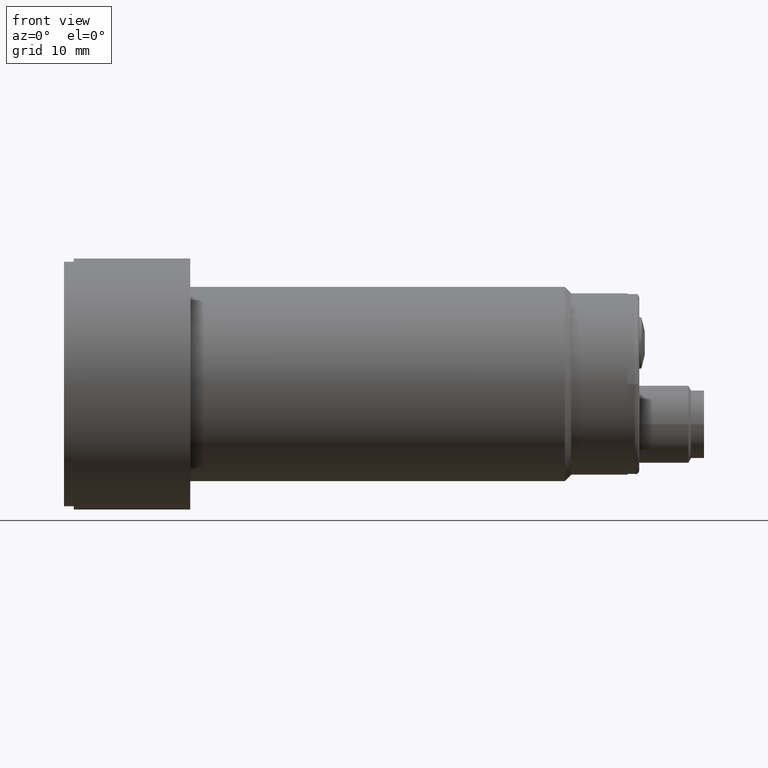
[diagram: clean part render]
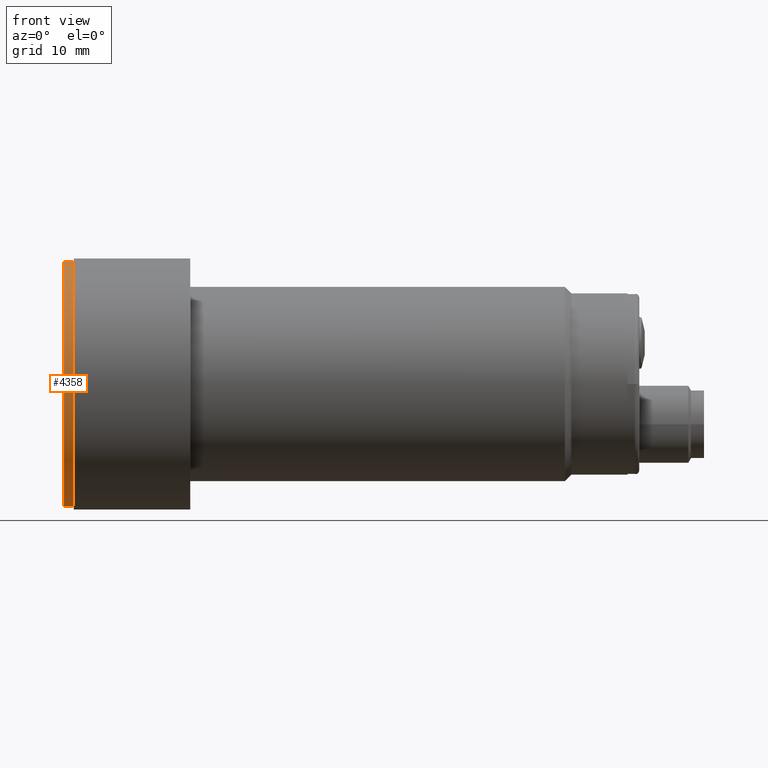
[diagram: same view with one face highlighted and labeled with its STEP entity id]
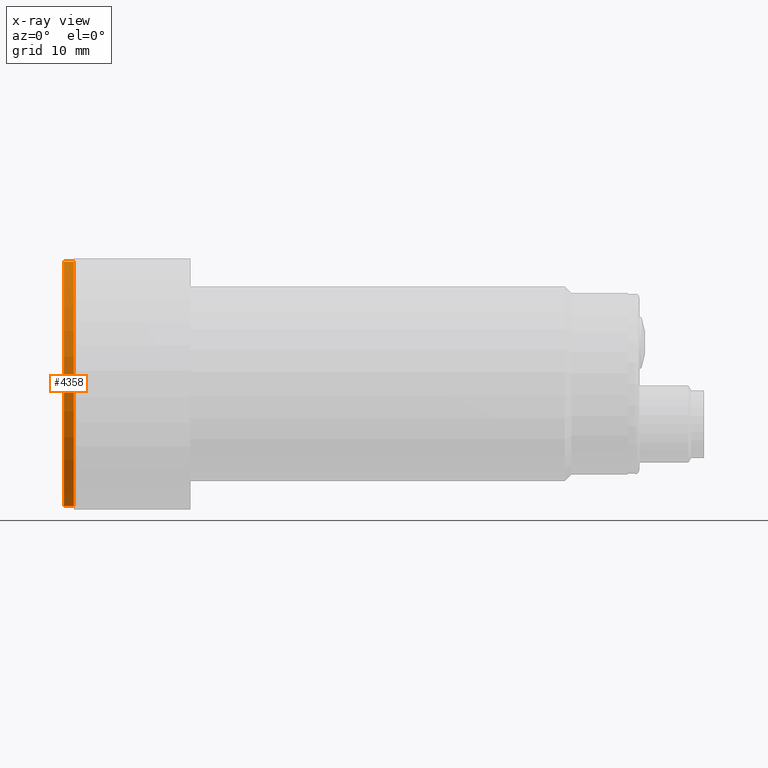
[diagram: x-ray of the same camera — body ghosted, the highlighted face saturated]
A machine part, front view. The second image highlights one B-rep face of the part: STEP entity #4358.
The next image is the same camera in x-ray: the body ghosted, the highlighted face saturated — about 0% of this face is hidden behind the body in this view.
In plain terms, the highlighted cylindrical surface (partial cylindrical patch) has radius 18.9 mm, axis along (1, -0, -0).
Its self-contained STEP definition (entity closure, byte-faithful):
#29 = DIRECTION ( 'NONE',  ( 1.000000000000000000, -0.0000000000000000000, -0.0000000000000000000 ) ) ;
#164 = VECTOR ( 'NONE', #4712, 39.37007874015748100 ) ;
#260 = ORIENTED_EDGE ( 'NONE', *, *, #4397, .T. ) ;
#585 = VERTEX_POINT ( 'NONE', #3147 ) ;
#645 = VECTOR ( 'NONE', #1870, 39.37007874015748100 ) ;
#742 = VERTEX_POINT ( 'NONE', #3089 ) ;
#867 = DIRECTION ( 'NONE',  ( 0.0000000000000000000, 0.0000000000000000000, -1.000000000000000000 ) ) ;
#969 = ORIENTED_EDGE ( 'NONE', *, *, #4742, .T. ) ;
#1000 = EDGE_CURVE ( 'NONE', #585, #742, #5057, .T. ) ;
#1052 = VERTEX_POINT ( 'NONE', #4121 ) ;
#1167 = LINE ( 'NONE', #3070, #645 ) ;
#1235 = EDGE_CURVE ( 'NONE', #1052, #742, #1167, .T. ) ;
#1326 = CIRCLE ( 'NONE', #1487, 0.7440944881889763900 ) ;
#1356 = EDGE_LOOP ( 'NONE', ( #1846, #260, #969, #3538 ) ) ;
#1487 = AXIS2_PLACEMENT_3D ( 'NONE', #4305, #3186, #867 ) ;
#1609 = DIRECTION ( 'NONE',  ( 0.0000000000000000000, 0.0000000000000000000, -1.000000000000000000 ) ) ;
#1630 = CARTESIAN_POINT ( 'NONE',  ( -0.05905511811023622700, -6.556435184794253000E-018, -0.7440944881889763900 ) ) ;
#1846 = ORIENTED_EDGE ( 'NONE', *, *, #1235, .F. ) ;
#1870 = DIRECTION ( 'NONE',  ( 1.000000000000000000, -0.0000000000000000000, -0.0000000000000000000 ) ) ;
#1908 = AXIS2_PLACEMENT_3D ( 'NONE', #4751, #29, #1609 ) ;
#2352 = CARTESIAN_POINT ( 'NONE',  ( 0.0000000000000000000, -6.556435184794253000E-018, -0.7440944881889763900 ) ) ;
#2542 = LINE ( 'NONE', #2352, #164 ) ;
#2899 = DIRECTION ( 'NONE',  ( 0.0000000000000000000, 0.0000000000000000000, -1.000000000000000000 ) ) ;
#3070 = CARTESIAN_POINT ( 'NONE',  ( 0.0000000000000000000, 8.456885813758755300E-017, 0.7440944881889763900 ) ) ;
#3089 = CARTESIAN_POINT ( 'NONE',  ( 0.0000000000000000000, 8.456885813758755300E-017, 0.7440944881889763900 ) ) ;
#3147 = CARTESIAN_POINT ( 'NONE',  ( 0.0000000000000000000, -6.556435184794253000E-018, -0.7440944881889763900 ) ) ;
#3186 = DIRECTION ( 'NONE',  ( 1.000000000000000000, -0.0000000000000000000, -0.0000000000000000000 ) ) ;
#3206 = VERTEX_POINT ( 'NONE', #1630 ) ;
#3445 = AXIS2_PLACEMENT_3D ( 'NONE', #4090, #4862, #2899 ) ;
#3538 = ORIENTED_EDGE ( 'NONE', *, *, #1000, .T. ) ;
#4090 = CARTESIAN_POINT ( 'NONE',  ( 0.0000000000000000000, -6.556435184794253000E-018, 3.278217592397122300E-018 ) ) ;
#4100 = CYLINDRICAL_SURFACE ( 'NONE', #1908, 0.7440944881889763900 ) ;
#4121 = CARTESIAN_POINT ( 'NONE',  ( -0.05905511811023622700, 8.456885813758755300E-017, 0.7440944881889763900 ) ) ;
#4305 = CARTESIAN_POINT ( 'NONE',  ( -0.05905511811023622700, -6.556435184794253000E-018, 3.278217592397122300E-018 ) ) ;
#4358 = ADVANCED_FACE ( 'NONE', ( #4528 ), #4100, .T. ) ;
#4397 = EDGE_CURVE ( 'NONE', #1052, #3206, #1326, .T. ) ;
#4528 = FACE_OUTER_BOUND ( 'NONE', #1356, .T. ) ;
#4712 = DIRECTION ( 'NONE',  ( 1.000000000000000000, -0.0000000000000000000, -0.0000000000000000000 ) ) ;
#4742 = EDGE_CURVE ( 'NONE', #3206, #585, #2542, .T. ) ;
#4751 = CARTESIAN_POINT ( 'NONE',  ( 0.0000000000000000000, -6.556435184794253000E-018, 3.278217592397122300E-018 ) ) ;
#4862 = DIRECTION ( 'NONE',  ( -1.000000000000000000, 0.0000000000000000000, 0.0000000000000000000 ) ) ;
#5057 = CIRCLE ( 'NONE', #3445, 0.7440944881889763900 ) ;